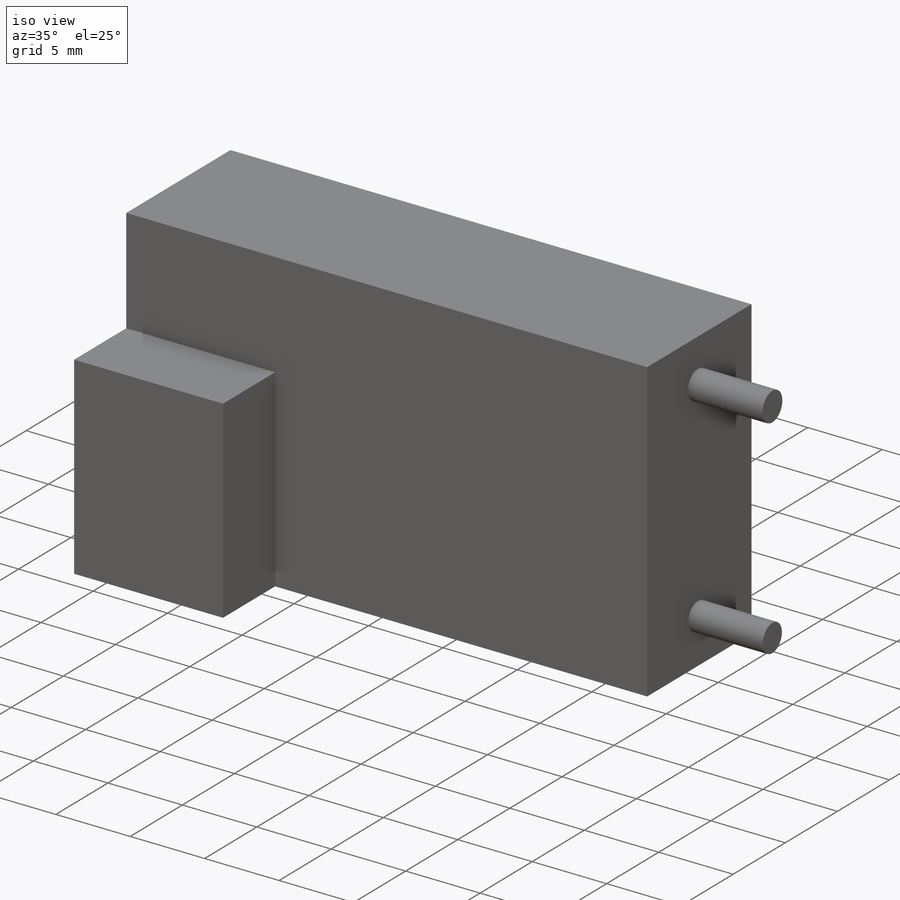
[diagram: iso view]
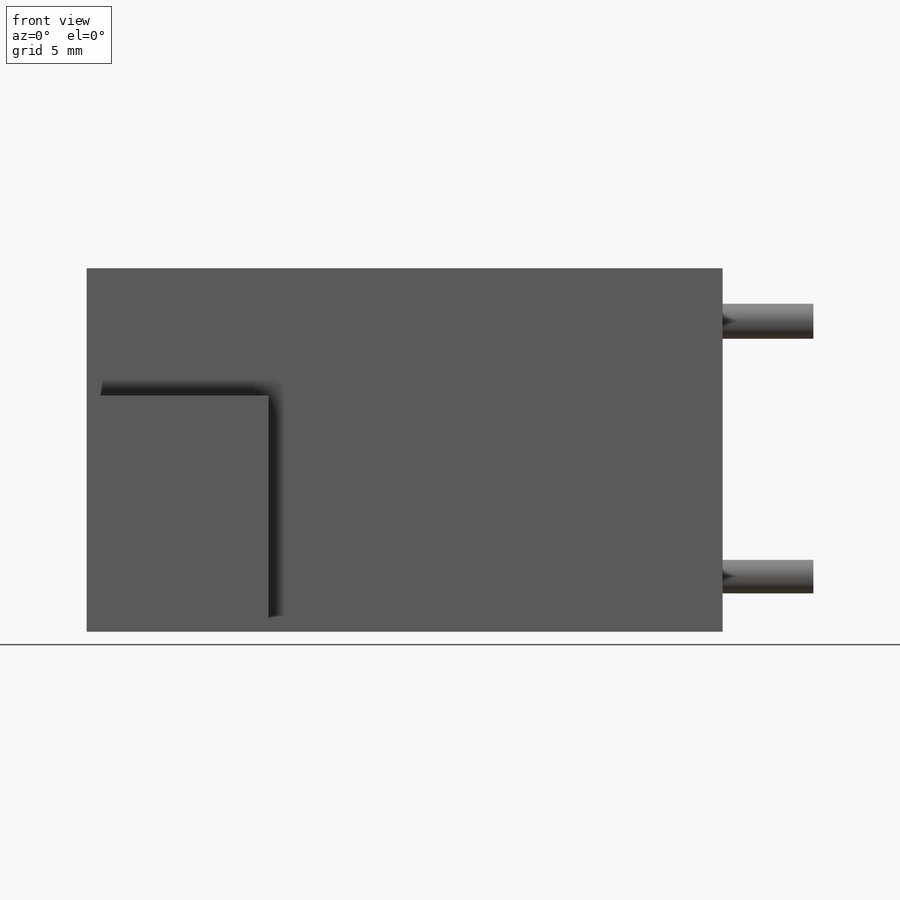
[diagram: front view]
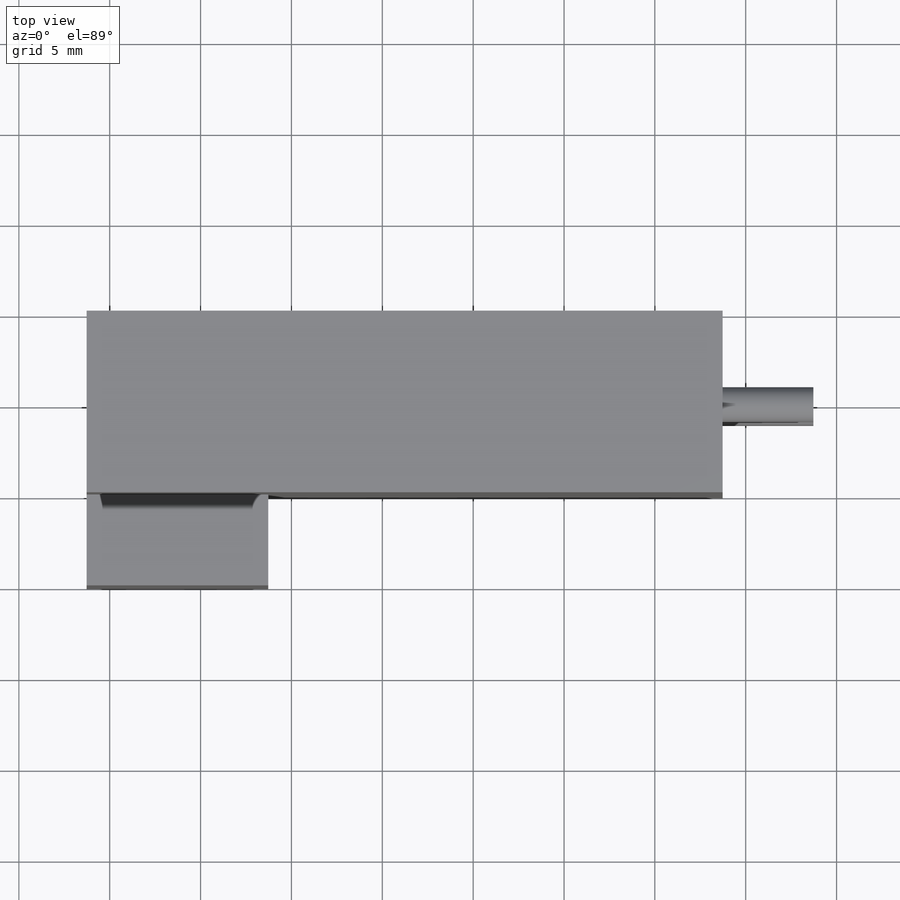
[diagram: top view]
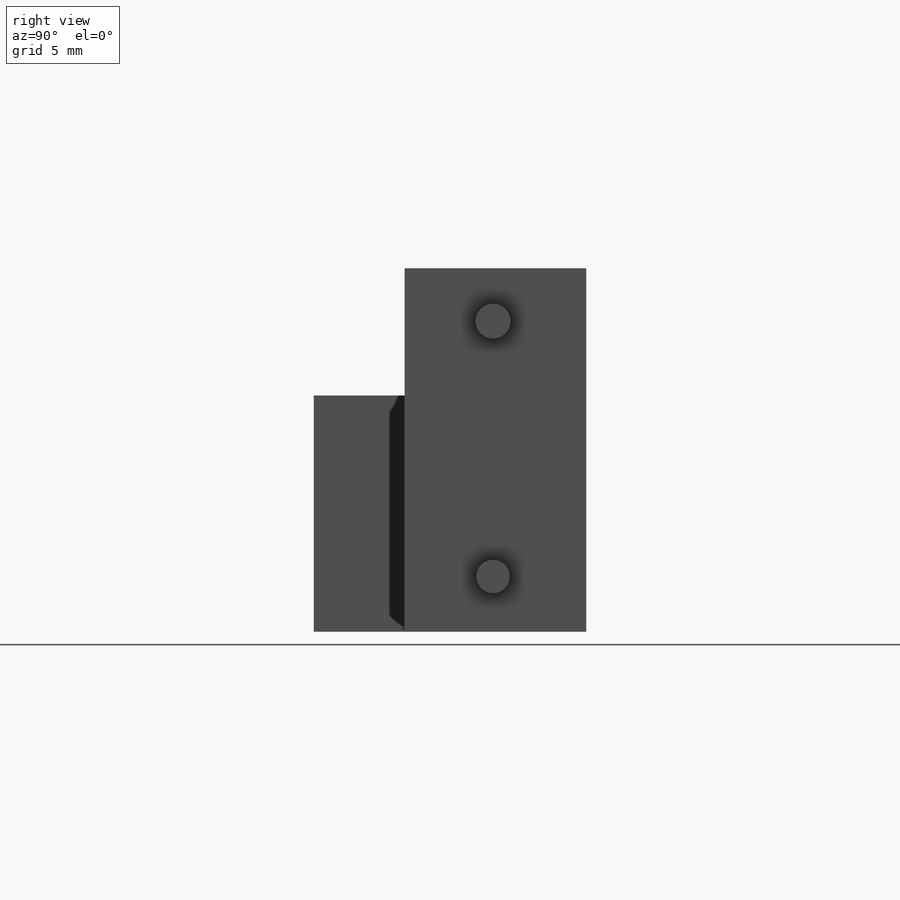
[diagram: right view]
SOLIDWORKS PART (.sldprt)
format: sldprt  version: not decoded by parser v0  size: 143,360 bytes
history: native  units: mm
features: plane x3, sketch x3, extrude x3, material x1 (+9 scaffold rows collapsed)
feature tree (19):
  scaffold x9  (default folders/planes/origin — collapsed)
  material  "Material <não especificado>"
  plane  "Plano frontal"
  plane  "Plano superior"
  plane  "Plano direito"
  sketch  "Esboço1"  dims[D1=35.0mm D2=20.0mm]
  extrude  "Ressalto-extrusão1"  Depth=10mm
  sketch  "Esboço2"  dims[D1=13.0mm D2=10.0mm]
  extrude  "Ressalto-extrusão2"  Depth=5mm
  sketch  "Esboço3"
  extrude  "Ressalto-extrusão3"  Depth=5mm
decode coverage: 5 of 6 modeling features carry decoded parameters
note: suppression state not decoded; provenance and decode notes live in map.json
